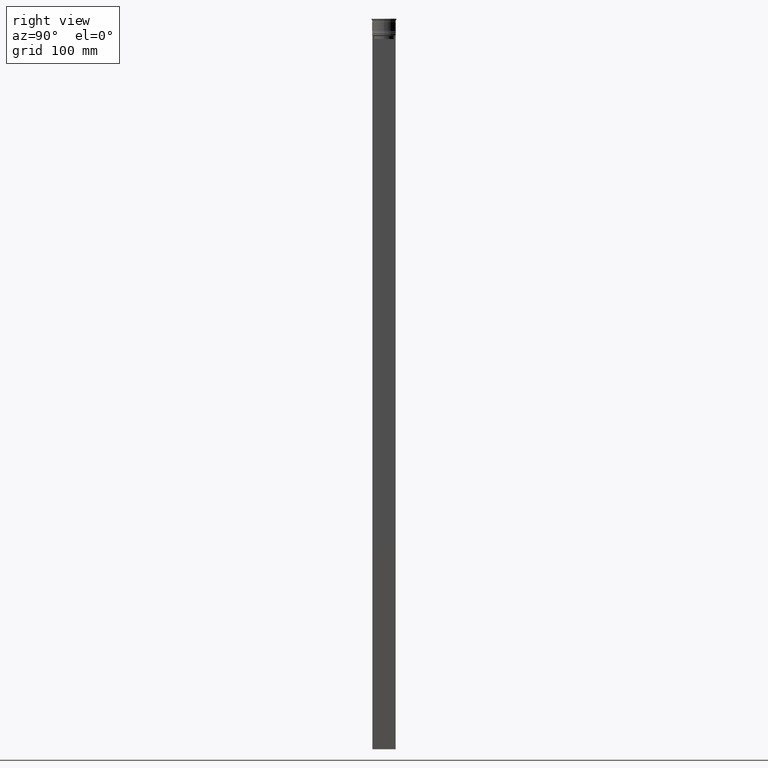
[diagram: clean part render]
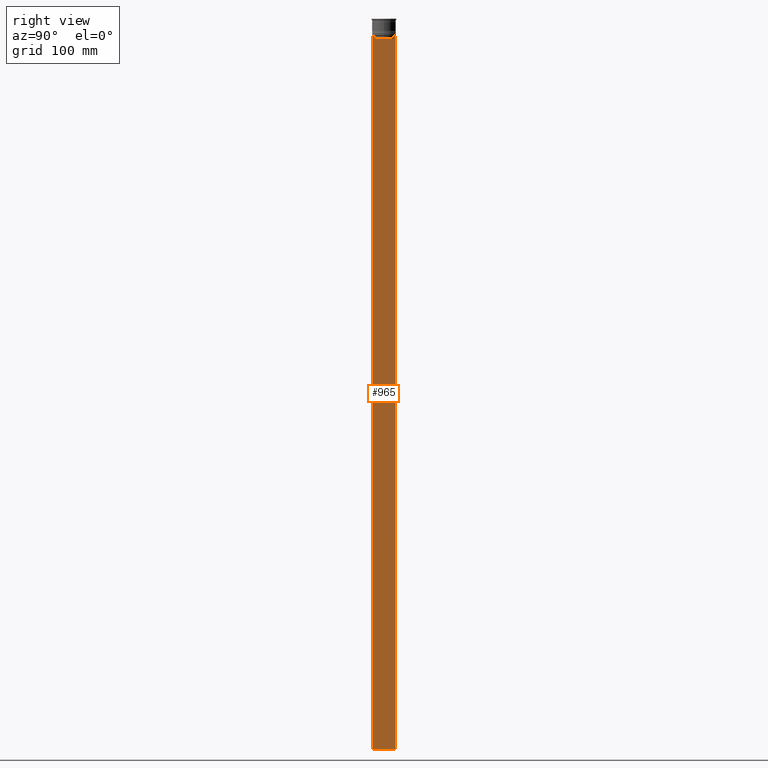
[diagram: same view with one face highlighted and labeled with its STEP entity id]
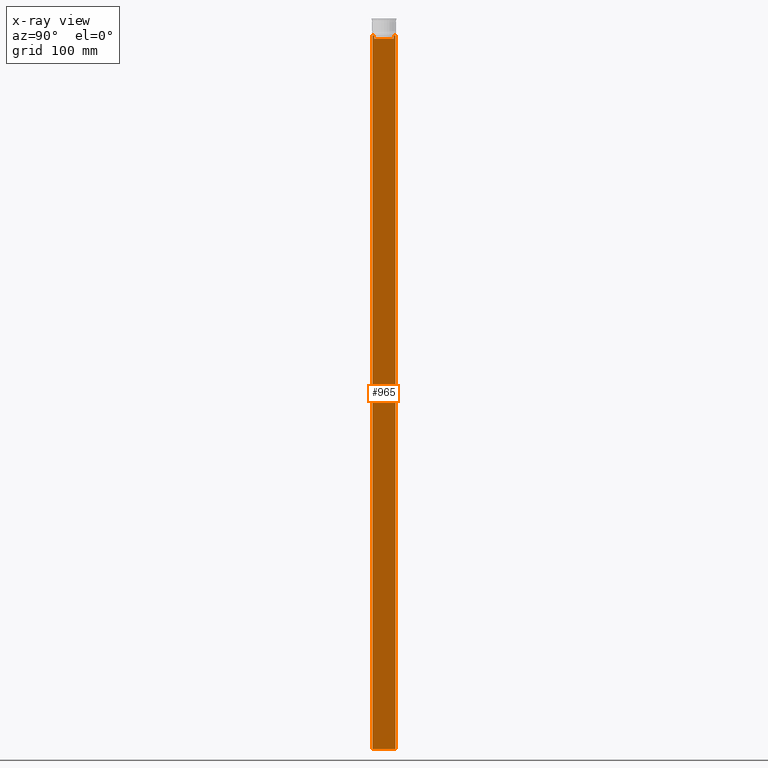
[diagram: x-ray of the same camera — body ghosted, the highlighted face saturated]
A machine part, right view. The second image highlights one B-rep face of the part: STEP entity #965.
The next image is the same camera in x-ray: the body ghosted, the highlighted face saturated — about 0% of this face is hidden behind the body in this view.
In plain terms, the highlighted planar face has unit normal (-1, 0, 0).
Its self-contained STEP definition (entity closure, byte-faithful):
#63 = LINE ( 'NONE', #454, #1591 ) ;
#77 = EDGE_CURVE ( 'NONE', #1086, #722, #2432, .T. ) ;
#103 = ORIENTED_EDGE ( 'NONE', *, *, #2148, .T. ) ;
#118 = LINE ( 'NONE', #1906, #2497 ) ;
#196 = DIRECTION ( 'NONE',  ( 0.000000000000000000, 1.000000000000000000, 0.000000000000000000 ) ) ;
#256 = VECTOR ( 'NONE', #1534, 1000.000000000000000 ) ;
#260 = B_SPLINE_CURVE_WITH_KNOTS ( 'NONE', 3,
 ( #892, #2320, #1296, #1103 ),
 .UNSPECIFIED., .F., .F.,
 ( 4, 4 ),
 ( 0.01511546479386908018, 0.01582316445439079997 ),
 .UNSPECIFIED. ) ;
#270 = ORIENTED_EDGE ( 'NONE', *, *, #1631, .T. ) ;
#271 = LINE ( 'NONE', #2504, #372 ) ;
#275 = CARTESIAN_POINT ( 'NONE',  ( 0.4999999999999998890, -9.749999999999998224, -614.0000000000000000 ) ) ;
#313 = CARTESIAN_POINT ( 'NONE',  ( 0.4999999999999998890, 9.750000000000001776, -14.00000000000000178 ) ) ;
#372 = VECTOR ( 'NONE', #1054, 1000.000000000000000 ) ;
#391 = LINE ( 'NONE', #2386, #621 ) ;
#409 = AXIS2_PLACEMENT_3D ( 'NONE', #1359, #769, #1542 ) ;
#412 = EDGE_CURVE ( 'NONE', #722, #1236, #2360, .T. ) ;
#435 = CARTESIAN_POINT ( 'NONE',  ( 0.4999999999999998890, -8.385105843100616241, -17.00000000000000000 ) ) ;
#454 = CARTESIAN_POINT ( 'NONE',  ( 0.4999999999999998890, -9.749999999999998224, -14.00000000000000178 ) ) ;
#506 = VERTEX_POINT ( 'NONE', #275 ) ;
#522 = ORIENTED_EDGE ( 'NONE', *, *, #2384, .T. ) ;
#532 = FACE_OUTER_BOUND ( 'NONE', #2267, .T. ) ;
#550 = CARTESIAN_POINT ( 'NONE',  ( 0.4999999999999998890, 8.400000000000003908, -17.00000000000000000 ) ) ;
#582 = VERTEX_POINT ( 'NONE', #313 ) ;
#590 = DIRECTION ( 'NONE',  ( 0.000000000000000000, 0.000000000000000000, -1.000000000000000000 ) ) ;
#613 = VERTEX_POINT ( 'NONE', #1147 ) ;
#621 = VECTOR ( 'NONE', #590, 1000.000000000000000 ) ;
#722 = VERTEX_POINT ( 'NONE', #2393 ) ;
#769 = DIRECTION ( 'NONE',  ( -1.000000000000000000, 0.000000000000000000, 0.000000000000000000 ) ) ;
#882 = CARTESIAN_POINT ( 'NONE',  ( 0.4999999999999998890, -8.385105843100616241, 0.000000000000000000 ) ) ;
#883 = EDGE_CURVE ( 'NONE', #1401, #506, #271, .T. ) ;
#889 = EDGE_CURVE ( 'NONE', #1236, #1401, #1278, .T. ) ;
#892 = CARTESIAN_POINT ( 'NONE',  ( 0.4999999999999998890, 8.885943956609230199, -14.00000000000000178 ) ) ;
#920 = EDGE_CURVE ( 'NONE', #582, #1901, #118, .T. ) ;
#965 = ADVANCED_FACE ( 'NONE', ( #532 ), #1775, .F. ) ;
#1015 = VERTEX_POINT ( 'NONE', #2354 ) ;
#1054 = DIRECTION ( 'NONE',  ( 0.000000000000000000, 0.000000000000000000, -1.000000000000000000 ) ) ;
#1066 = DIRECTION ( 'NONE',  ( 0.000000000000000000, -1.000000000000000000, 0.000000000000000000 ) ) ;
#1085 = ORIENTED_EDGE ( 'NONE', *, *, #920, .F. ) ;
#1086 = VERTEX_POINT ( 'NONE', #435 ) ;
#1091 = CARTESIAN_POINT ( 'NONE',  ( 0.4999999999999998890, 9.750000000000001776, -614.0000000000000000 ) ) ;
#1103 = CARTESIAN_POINT ( 'NONE',  ( 0.4999999999999998890, 8.385105843100616241, -14.50000000000000000 ) ) ;
#1147 = CARTESIAN_POINT ( 'NONE',  ( 0.4999999999999998890, 8.885943956609230199, -14.00000000000000178 ) ) ;
#1173 = LINE ( 'NONE', #1786, #1723 ) ;
#1229 = VERTEX_POINT ( 'NONE', #2461 ) ;
#1236 = VERTEX_POINT ( 'NONE', #1501 ) ;
#1278 = LINE ( 'NONE', #2319, #1421 ) ;
#1296 = CARTESIAN_POINT ( 'NONE',  ( 0.4999999999999998890, 8.552060201981378285, -14.33334167021640582 ) ) ;
#1308 = ORIENTED_EDGE ( 'NONE', *, *, #2231, .T. ) ;
#1310 = DIRECTION ( 'NONE',  ( 0.000000000000000000, 0.000000000000000000, -1.000000000000000000 ) ) ;
#1359 = CARTESIAN_POINT ( 'NONE',  ( 0.4999999999999998890, -9.749999999999998224, 5.525624189766635830 ) ) ;
#1367 = CARTESIAN_POINT ( 'NONE',  ( 0.4999999999999998890, -9.749999999999998224, -14.00000000000000178 ) ) ;
#1401 = VERTEX_POINT ( 'NONE', #1367 ) ;
#1421 = VECTOR ( 'NONE', #1066, 1000.000000000000000 ) ;
#1501 = CARTESIAN_POINT ( 'NONE',  ( 0.4999999999999998890, -8.885943956609230199, -14.00000000000000178 ) ) ;
#1534 = DIRECTION ( 'NONE',  ( 0.000000000000000000, -1.000000000000000000, 0.000000000000000000 ) ) ;
#1542 = DIRECTION ( 'NONE',  ( 0.000000000000000000, 0.000000000000000000, 1.000000000000000000 ) ) ;
#1591 = VECTOR ( 'NONE', #2054, 1000.000000000000000 ) ;
#1631 = EDGE_CURVE ( 'NONE', #1015, #1229, #391, .T. ) ;
#1673 = CARTESIAN_POINT ( 'NONE',  ( 0.4999999999999998890, -8.719005764482787413, -14.16667454151160044 ) ) ;
#1695 = ORIENTED_EDGE ( 'NONE', *, *, #889, .T. ) ;
#1723 = VECTOR ( 'NONE', #196, 1000.000000000000000 ) ;
#1775 = PLANE ( 'NONE',  #409 ) ;
#1786 = CARTESIAN_POINT ( 'NONE',  ( 0.4999999999999998890, -9.749999999999998224, -614.0000000000000000 ) ) ;
#1867 = CARTESIAN_POINT ( 'NONE',  ( 0.4999999999999998890, -8.552060194457768105, -14.33334167772667556 ) ) ;
#1901 = VERTEX_POINT ( 'NONE', #1091 ) ;
#1906 = CARTESIAN_POINT ( 'NONE',  ( 0.4999999999999998890, 9.750000000000001776, 5.525624189766635830 ) ) ;
#2033 = DIRECTION ( 'NONE',  ( -0.000000000000000000, -0.000000000000000000, 1.000000000000000000 ) ) ;
#2040 = CARTESIAN_POINT ( 'NONE',  ( 0.4999999999999998890, -8.885943956609230199, -14.00000000000000178 ) ) ;
#2054 = DIRECTION ( 'NONE',  ( 0.000000000000000000, -1.000000000000000000, 0.000000000000000000 ) ) ;
#2085 = VECTOR ( 'NONE', #2033, 1000.000000000000000 ) ;
#2135 = LINE ( 'NONE', #550, #256 ) ;
#2148 = EDGE_CURVE ( 'NONE', #582, #613, #63, .T. ) ;
#2191 = ORIENTED_EDGE ( 'NONE', *, *, #412, .T. ) ;
#2203 = ORIENTED_EDGE ( 'NONE', *, *, #77, .T. ) ;
#2231 = EDGE_CURVE ( 'NONE', #613, #1015, #260, .T. ) ;
#2234 = CARTESIAN_POINT ( 'NONE',  ( 0.4999999999999998890, -8.385105843100616241, -14.50000000000000000 ) ) ;
#2262 = EDGE_CURVE ( 'NONE', #1229, #1086, #2135, .T. ) ;
#2267 = EDGE_LOOP ( 'NONE', ( #103, #1308, #270, #2410, #2203, #2191, #1695, #2487, #522, #1085 ) ) ;
#2319 = CARTESIAN_POINT ( 'NONE',  ( 0.4999999999999998890, -9.749999999999998224, -14.00000000000000178 ) ) ;
#2320 = CARTESIAN_POINT ( 'NONE',  ( 0.4999999999999998890, 8.719005771582347464, -14.16667453442325453 ) ) ;
#2354 = CARTESIAN_POINT ( 'NONE',  ( 0.4999999999999998890, 8.385105843100616241, -14.50000000000000000 ) ) ;
#2360 = B_SPLINE_CURVE_WITH_KNOTS ( 'NONE', 3,
 ( #2234, #1867, #1673, #2040 ),
 .UNSPECIFIED., .F., .F.,
 ( 4, 4 ),
 ( 0.03898465126933130243, 0.03969388910599658260 ),
 .UNSPECIFIED. ) ;
#2384 = EDGE_CURVE ( 'NONE', #506, #1901, #1173, .T. ) ;
#2386 = CARTESIAN_POINT ( 'NONE',  ( 0.4999999999999998890, 8.385105843100616241, 0.000000000000000000 ) ) ;
#2393 = CARTESIAN_POINT ( 'NONE',  ( 0.4999999999999998890, -8.385105843100616241, -14.50000000000000000 ) ) ;
#2410 = ORIENTED_EDGE ( 'NONE', *, *, #2262, .T. ) ;
#2432 = LINE ( 'NONE', #882, #2085 ) ;
#2461 = CARTESIAN_POINT ( 'NONE',  ( 0.4999999999999998890, 8.385105843100616241, -17.00000000000000000 ) ) ;
#2487 = ORIENTED_EDGE ( 'NONE', *, *, #883, .T. ) ;
#2497 = VECTOR ( 'NONE', #1310, 1000.000000000000000 ) ;
#2504 = CARTESIAN_POINT ( 'NONE',  ( 0.4999999999999998890, -9.749999999999998224, 5.525624189766635830 ) ) ;